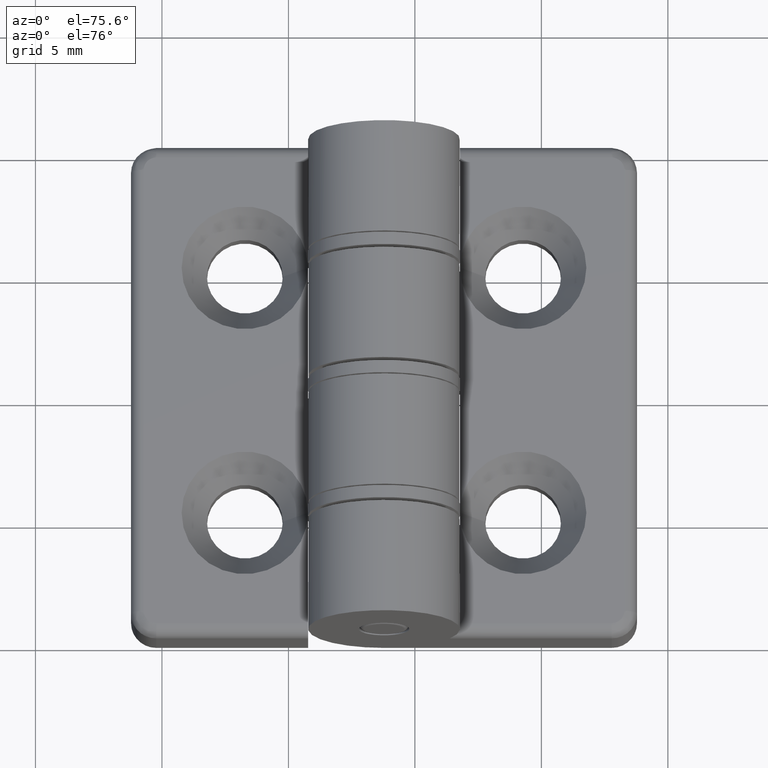
[diagram: clean part render]
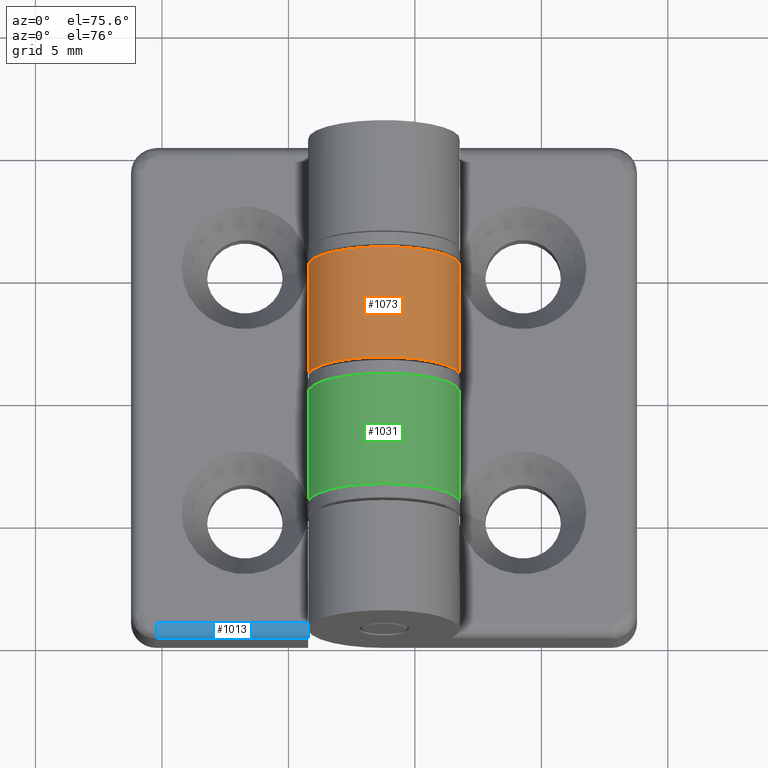
[diagram: same view with three faces highlighted in distinct colors, each labeled with its STEP entity id]
A machine part, auxiliary view with three faces highlighted in distinct colors.
Their STEP definitions:

[orange] entity #1073 — the highlighted cylindrical surface (partial cylindrical patch) has radius 3 mm, axis along (0, 1, 0).
#175=FACE_OUTER_BOUND('',#276,.T.);
#276=EDGE_LOOP('',(#948,#949,#950,#951));
#330=LINE('',#1821,#396);
#350=LINE('',#1889,#416);
#396=VECTOR('',#1456,4.5);
#416=VECTOR('',#1528,4.5);
#478=CIRCLE('',#1199,3.);
#482=CIRCLE('',#1206,3.);
#556=VERTEX_POINT('',#1818);
#557=VERTEX_POINT('',#1820);
#572=VERTEX_POINT('',#1865);
#578=VERTEX_POINT('',#1883);
#677=EDGE_CURVE('',#556,#557,#330,.T.);
#699=EDGE_CURVE('',#556,#572,#478,.T.);
#707=EDGE_CURVE('',#578,#557,#482,.T.);
#710=EDGE_CURVE('',#578,#572,#350,.T.);
#948=ORIENTED_EDGE('',*,*,#699,.T.);
#949=ORIENTED_EDGE('',*,*,#710,.F.);
#950=ORIENTED_EDGE('',*,*,#707,.T.);
#951=ORIENTED_EDGE('',*,*,#677,.F.);
#1009=CYLINDRICAL_SURFACE('',#1208,3.);
#1073=ADVANCED_FACE('',(#175),#1009,.T.);
#1199=AXIS2_PLACEMENT_3D('',#1867,#1503,#1504);
#1206=AXIS2_PLACEMENT_3D('',#1884,#1521,#1522);
#1208=AXIS2_PLACEMENT_3D('',#1888,#1526,#1527);
#1456=DIRECTION('',(0.,0.,-1.));
#1503=DIRECTION('center_axis',(0.,0.,-1.));
#1504=DIRECTION('ref_axis',(-1.,0.,0.));
#1521=DIRECTION('center_axis',(0.,0.,1.));
#1522=DIRECTION('ref_axis',(-1.,0.,0.));
#1526=DIRECTION('center_axis',(0.,0.,1.));
#1527=DIRECTION('ref_axis',(-1.,0.,0.));
#1528=DIRECTION('',(0.,0.,1.));
#1818=CARTESIAN_POINT('',(-2.82842712474619,2.,4.835));
#1820=CARTESIAN_POINT('',(-2.82842712474619,2.,0.335000000000001));
#1821=CARTESIAN_POINT('',(-2.82842712474619,2.,0.));
#1865=CARTESIAN_POINT('',(4.29694982209299E-16,0.,4.835));
#1867=CARTESIAN_POINT('Origin',(1.5213922605301E-16,3.,4.835));
#1883=CARTESIAN_POINT('',(4.29694982209299E-16,0.,0.335000000000001));
#1884=CARTESIAN_POINT('Origin',(1.5213922605301E-16,3.,0.335000000000001));
#1888=CARTESIAN_POINT('Origin',(1.5213922605301E-16,3.,0.));
#1889=CARTESIAN_POINT('',(0.,0.,0.));

[blue] entity #1013 — the highlighted cylindrical surface (edge-blend (fillet) strip) has radius 0.5 mm, axis along (-1, -0, 0).
#115=FACE_OUTER_BOUND('',#182,.T.);
#182=EDGE_LOOP('',(#716,#717,#718,#719));
#288=LINE('',#1560,#354);
#289=LINE('',#1563,#355);
#354=VECTOR('',#1226,6.);
#355=VECTOR('',#1229,6.);
#420=CIRCLE('',#1088,0.5);
#421=CIRCLE('',#1089,0.5);
#486=VERTEX_POINT('',#1556);
#487=VERTEX_POINT('',#1557);
#488=VERTEX_POINT('',#1559);
#489=VERTEX_POINT('',#1561);
#582=EDGE_CURVE('',#486,#487,#420,.T.);
#583=EDGE_CURVE('',#487,#488,#288,.T.);
#584=EDGE_CURVE('',#488,#489,#421,.T.);
#585=EDGE_CURVE('',#489,#486,#289,.T.);
#716=ORIENTED_EDGE('',*,*,#582,.T.);
#717=ORIENTED_EDGE('',*,*,#583,.T.);
#718=ORIENTED_EDGE('',*,*,#584,.T.);
#719=ORIENTED_EDGE('',*,*,#585,.T.);
#984=CYLINDRICAL_SURFACE('',#1087,0.5);
#1013=ADVANCED_FACE('',(#115),#984,.T.);
#1087=AXIS2_PLACEMENT_3D('',#1555,#1222,#1223);
#1088=AXIS2_PLACEMENT_3D('',#1558,#1224,#1225);
#1089=AXIS2_PLACEMENT_3D('',#1562,#1227,#1228);
#1222=DIRECTION('center_axis',(-1.,-1.11022302462516E-16,0.));
#1223=DIRECTION('ref_axis',(-7.85046229341887E-17,0.707106781186547,0.707106781186548));
#1224=DIRECTION('center_axis',(-1.,-1.2335811384724E-16,0.));
#1225=DIRECTION('ref_axis',(-7.85046229341887E-17,0.707106781186547,0.707106781186548));
#1226=DIRECTION('',(-1.,-1.11022302462516E-16,0.));
#1227=DIRECTION('center_axis',(1.,0.,0.));
#1228=DIRECTION('ref_axis',(0.,1.,0.));
#1229=DIRECTION('',(1.,1.11022302462516E-16,0.));
#1555=CARTESIAN_POINT('Origin',(1.85491307465449E-16,1.5,9.5));
#1556=CARTESIAN_POINT('',(-3.,1.5,10.));
#1557=CARTESIAN_POINT('',(-3.,2.,9.5));
#1558=CARTESIAN_POINT('Origin',(-3.,1.5,9.5));
#1559=CARTESIAN_POINT('',(-9.,2.,9.5));
#1560=CARTESIAN_POINT('',(1.29980156234192E-16,2.,9.5));
#1561=CARTESIAN_POINT('',(-9.,1.5,10.));
#1562=CARTESIAN_POINT('Origin',(-9.,1.5,9.5));
#1563=CARTESIAN_POINT('',(1.85491307465449E-16,1.5,10.));

[green] entity #1031 — the highlighted cylindrical surface (partial cylindrical patch) has radius 3 mm, axis along (0, -1, -0).
#133=FACE_OUTER_BOUND('',#207,.T.);
#207=EDGE_LOOP('',(#798,#799,#800,#801));
#297=LINE('',#1622,#363);
#317=LINE('',#1690,#383);
#363=VECTOR('',#1259,4.5);
#383=VECTOR('',#1331,4.5);
#437=CIRCLE('',#1117,3.);
#441=CIRCLE('',#1124,3.);
#500=VERTEX_POINT('',#1619);
#501=VERTEX_POINT('',#1621);
#516=VERTEX_POINT('',#1666);
#522=VERTEX_POINT('',#1684);
#602=EDGE_CURVE('',#500,#501,#297,.T.);
#624=EDGE_CURVE('',#500,#516,#437,.T.);
#632=EDGE_CURVE('',#522,#501,#441,.T.);
#635=EDGE_CURVE('',#522,#516,#317,.T.);
#798=ORIENTED_EDGE('',*,*,#624,.T.);
#799=ORIENTED_EDGE('',*,*,#635,.F.);
#800=ORIENTED_EDGE('',*,*,#632,.T.);
#801=ORIENTED_EDGE('',*,*,#602,.F.);
#991=CYLINDRICAL_SURFACE('',#1126,3.);
#1031=ADVANCED_FACE('',(#133),#991,.T.);
#1117=AXIS2_PLACEMENT_3D('',#1668,#1306,#1307);
#1124=AXIS2_PLACEMENT_3D('',#1685,#1324,#1325);
#1126=AXIS2_PLACEMENT_3D('',#1689,#1329,#1330);
#1259=DIRECTION('',(0.,0.,-1.));
#1306=DIRECTION('center_axis',(0.,0.,-1.));
#1307=DIRECTION('ref_axis',(-1.,0.,0.));
#1324=DIRECTION('center_axis',(0.,0.,1.));
#1325=DIRECTION('ref_axis',(-1.,0.,0.));
#1329=DIRECTION('center_axis',(0.,0.,1.));
#1330=DIRECTION('ref_axis',(-1.,0.,0.));
#1331=DIRECTION('',(0.,0.,1.));
#1619=CARTESIAN_POINT('',(-2.82842712474619,2.,4.835));
#1621=CARTESIAN_POINT('',(-2.82842712474619,2.,0.335000000000001));
#1622=CARTESIAN_POINT('',(-2.82842712474619,2.,0.));
#1666=CARTESIAN_POINT('',(4.29694982209299E-16,0.,4.835));
#1668=CARTESIAN_POINT('Origin',(1.5213922605301E-16,3.,4.835));
#1684=CARTESIAN_POINT('',(4.29694982209299E-16,0.,0.335000000000001));
#1685=CARTESIAN_POINT('Origin',(1.5213922605301E-16,3.,0.335000000000001));
#1689=CARTESIAN_POINT('Origin',(1.5213922605301E-16,3.,0.));
#1690=CARTESIAN_POINT('',(0.,0.,0.));